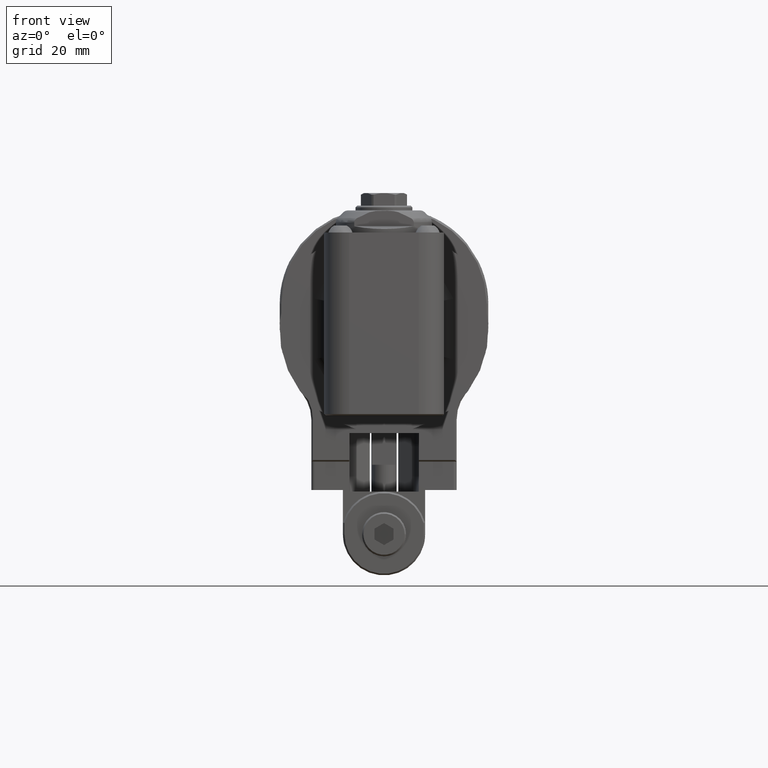
[diagram: clean part render]
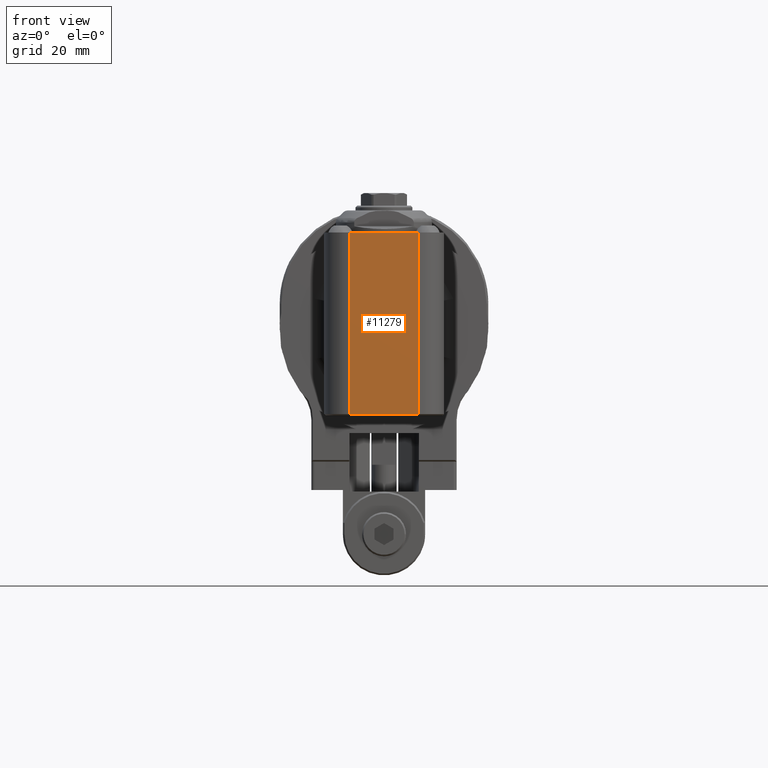
[diagram: same view with one face highlighted and labeled with its STEP entity id]
A machine part, front view. The second image highlights one B-rep face of the part: STEP entity #11279.
In plain terms, the highlighted planar face has unit normal (-0, 1, 0).
Its self-contained STEP definition (entity closure, byte-faithful):
#488=LINE('',#17171,#1353);
#490=LINE('',#17179,#1355);
#506=LINE('',#17256,#1371);
#507=LINE('',#17259,#1372);
#1353=VECTOR('',#13493,57.5);
#1355=VECTOR('',#13501,22.);
#1371=VECTOR('',#13555,57.5);
#1372=VECTOR('',#13560,22.);
#2543=FACE_OUTER_BOUND('',#3276,.T.);
#3276=EDGE_LOOP('',(#7660,#7661,#7662,#7663));
#4758=VERTEX_POINT('',#17168);
#4759=VERTEX_POINT('',#17170);
#4762=VERTEX_POINT('',#17178);
#4788=VERTEX_POINT('',#17255);
#5884=EDGE_CURVE('',#4759,#4758,#488,.T.);
#5888=EDGE_CURVE('',#4759,#4762,#490,.T.);
#5921=EDGE_CURVE('',#4762,#4788,#506,.T.);
#5923=EDGE_CURVE('',#4758,#4788,#507,.T.);
#7660=ORIENTED_EDGE('',*,*,#5884,.T.);
#7661=ORIENTED_EDGE('',*,*,#5923,.T.);
#7662=ORIENTED_EDGE('',*,*,#5921,.F.);
#7663=ORIENTED_EDGE('',*,*,#5888,.F.);
#10910=PLANE('',#12110);
#11279=ADVANCED_FACE('',(#2543),#10910,.F.);
#12110=AXIS2_PLACEMENT_3D('',#17258,#13558,#13559);
#13493=DIRECTION('',(0.,1.,0.));
#13501=DIRECTION('',(0.,0.,1.));
#13555=DIRECTION('',(0.,1.,0.));
#13558=DIRECTION('center_axis',(-1.,0.,0.));
#13559=DIRECTION('ref_axis',(0.,1.,0.));
#13560=DIRECTION('',(0.,0.,1.));
#17168=CARTESIAN_POINT('',(127.,27.,-11.));
#17170=CARTESIAN_POINT('',(127.,-30.5,-11.));
#17171=CARTESIAN_POINT('',(127.,-30.5,-11.));
#17178=CARTESIAN_POINT('',(127.,-30.5,11.));
#17179=CARTESIAN_POINT('',(127.,-30.5,-11.));
#17255=CARTESIAN_POINT('',(127.,27.,11.));
#17256=CARTESIAN_POINT('',(127.,-30.5,11.));
#17258=CARTESIAN_POINT('Origin',(127.,-24.9999976,-33.3));
#17259=CARTESIAN_POINT('',(127.,27.,-11.));